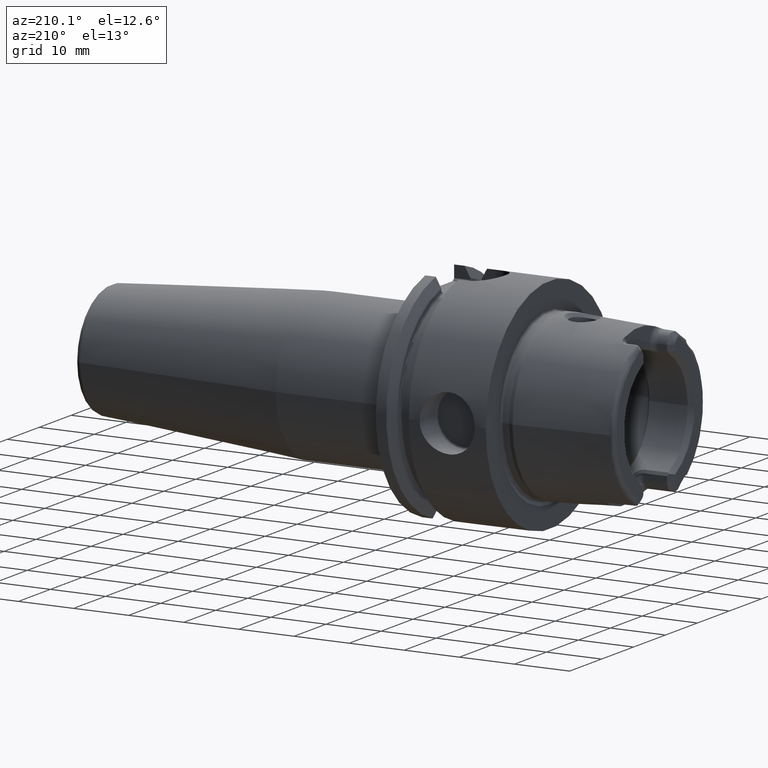
[diagram: clean part render]
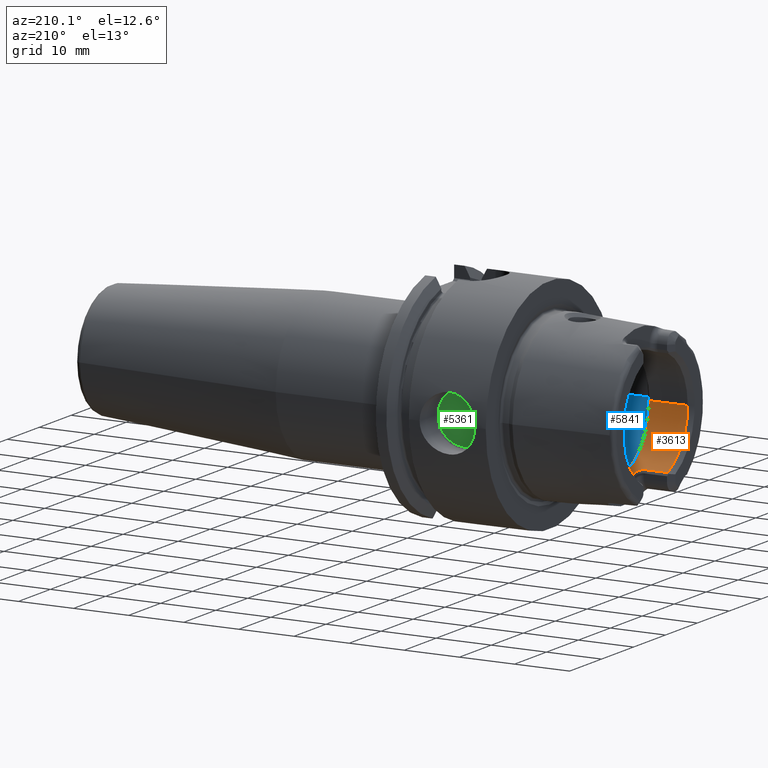
[diagram: same view with three faces highlighted in distinct colors, each labeled with its STEP entity id]
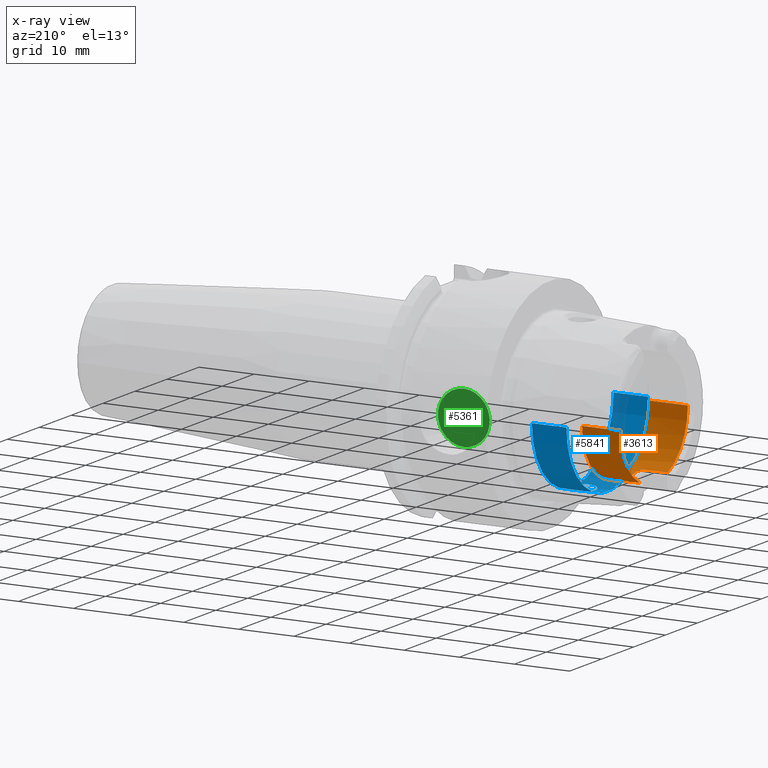
[diagram: x-ray of the same camera — body ghosted, the three highlighted faces saturated]
A machine part, auxiliary view with three faces highlighted in distinct colors.
The next image is the same camera in x-ray (body ghosted, the three faces saturated) — at least one of them is partly hidden behind the body in this view.
Their STEP definitions:

[orange] entity #3613 — the highlighted cylindrical surface (partial cylindrical patch) has radius 10.521 mm, axis along (1, 0, 0).
#162=CARTESIAN_POINT('',(-1.895E1,0.E0,0.E0));
#163=DIRECTION('',(-1.E0,0.E0,0.E0));
#164=DIRECTION('',(0.E0,1.E0,0.E0));
#165=AXIS2_PLACEMENT_3D('',#162,#163,#164);
#184=CARTESIAN_POINT('',(-1.895E1,0.E0,0.E0));
#185=DIRECTION('',(-1.E0,0.E0,0.E0));
#186=DIRECTION('',(0.E0,-4.118322130602E-1,-9.112596931095E-1));
#187=AXIS2_PLACEMENT_3D('',#184,#185,#186);
#449=DIRECTION('',(1.E0,0.E0,0.E0));
#450=VECTOR('',#449,4.2E0);
#451=CARTESIAN_POINT('',(-1.895E1,-4.332886713606E0,-9.587363231205E0));
#452=LINE('',#451,#450);
#453=CARTESIAN_POINT('',(-1.361905989232E1,-3.125E0,-1.004618415121E1));
#454=CARTESIAN_POINT('',(-1.361592975632E1,-3.211047903169E0,
-1.001941779959E1));
#455=CARTESIAN_POINT('',(-1.362830690364E1,-3.376674935645E0,
-9.965489777491E0));
#456=CARTESIAN_POINT('',(-1.369487701061E1,-3.608387354773E0,
-9.883797452962E0));
#457=CARTESIAN_POINT('',(-1.380248013601E1,-3.815484612338E0,
-9.805480189149E0));
#458=CARTESIAN_POINT('',(-1.394066255616E1,-3.989788124015E0,
-9.735653861397E0));
#459=CARTESIAN_POINT('',(-1.411012006945E1,-4.135710131103E0,
-9.674392936759E0));
#460=CARTESIAN_POINT('',(-1.430410390614E1,-4.245967146699E0,
-9.626339205832E0));
#461=CARTESIAN_POINT('',(-1.452166896898E1,-4.316666764177E0,
-9.594719443668E0));
#462=CARTESIAN_POINT('',(-1.467238435691E1,-4.332886713606E0,
-9.587363231205E0));
#463=CARTESIAN_POINT('',(-1.475E1,-4.332886713606E0,-9.587363231205E0));
#465=CARTESIAN_POINT('',(-1.361905989232E1,3.125E0,-1.004618415121E1));
#466=CARTESIAN_POINT('',(-1.361905989232E1,2.721042228969E0,-1.017184062092E1));
#467=CARTESIAN_POINT('',(-1.361905989235E1,1.897951985784E0,-1.037436441745E1));
#468=CARTESIAN_POINT('',(-1.361905989234E1,6.357304159773E-1,
-1.052736939476E1));
#469=CARTESIAN_POINT('',(-1.361905989234E1,-6.357304159773E-1,
-1.052736939476E1));
#470=CARTESIAN_POINT('',(-1.361905989235E1,-1.897951985784E0,
-1.037436441746E1));
#471=CARTESIAN_POINT('',(-1.361905989232E1,-2.721042228969E0,
-1.017184062091E1));
#472=CARTESIAN_POINT('',(-1.361905989232E1,-3.125E0,-1.004618415121E1));
#474=CARTESIAN_POINT('',(-1.475E1,4.332886713606E0,-9.587363231205E0));
#475=CARTESIAN_POINT('',(-1.467285006857E1,4.332886713606E0,-9.587363231205E0));
#476=CARTESIAN_POINT('',(-1.452307041867E1,4.316718593707E0,-9.594693336977E0));
#477=CARTESIAN_POINT('',(-1.430926406065E1,4.248069617223E0,-9.625405215616E0));
#478=CARTESIAN_POINT('',(-1.411435139104E1,4.138751657454E0,-9.673089130358E0));
#479=CARTESIAN_POINT('',(-1.394441708920E1,3.993617830691E0,-9.734075777499E0));
#480=CARTESIAN_POINT('',(-1.380572565004E1,3.820495104545E0,-9.803525976760E0));
#481=CARTESIAN_POINT('',(-1.369643644861E1,3.612675047199E0,-9.882244600219E0));
#482=CARTESIAN_POINT('',(-1.362856837010E1,3.378987943032E0,-9.964725252688E0));
#483=CARTESIAN_POINT('',(-1.361589935315E1,3.211883690699E0,-1.001915781670E1));
#484=CARTESIAN_POINT('',(-1.361905989232E1,3.125E0,-1.004618415121E1));
#486=DIRECTION('',(1.E0,0.E0,0.E0));
#487=VECTOR('',#486,4.2E0);
#488=CARTESIAN_POINT('',(-1.895E1,4.332886713606E0,-9.587363231205E0));
#489=LINE('',#488,#487);
#490=DIRECTION('',(-1.E0,0.E0,0.E0));
#491=VECTOR('',#490,6.964774086463E0);
#492=CARTESIAN_POINT('',(-1.198522591354E1,1.0521E1,0.E0));
#493=LINE('',#492,#491);
#494=CARTESIAN_POINT('',(-1.198522591354E1,0.E0,0.E0));
#495=DIRECTION('',(-1.E0,0.E0,0.E0));
#496=DIRECTION('',(0.E0,1.E0,0.E0));
#497=AXIS2_PLACEMENT_3D('',#494,#495,#496);
#499=DIRECTION('',(-1.E0,0.E0,0.E0));
#500=VECTOR('',#499,6.964774086463E0);
#501=CARTESIAN_POINT('',(-1.198522591354E1,-1.0521E1,0.E0));
#502=LINE('',#501,#500);
#2783=CARTESIAN_POINT('',(-1.475E1,-4.332886713606E0,-9.587363231205E0));
#2784=VERTEX_POINT('',#2783);
#2785=CARTESIAN_POINT('',(-1.361905989232E1,-3.125E0,-1.004618415121E1));
#2786=VERTEX_POINT('',#2785);
#2787=CARTESIAN_POINT('',(-1.475E1,4.332886713606E0,-9.587363231205E0));
#2788=VERTEX_POINT('',#2787);
#2789=CARTESIAN_POINT('',(-1.361905989232E1,3.125E0,-1.004618415121E1));
#2790=VERTEX_POINT('',#2789);
#3066=CARTESIAN_POINT('',(-1.198522591354E1,1.0521E1,0.E0));
#3067=VERTEX_POINT('',#3066);
#3068=CARTESIAN_POINT('',(-1.895E1,1.0521E1,0.E0));
#3069=VERTEX_POINT('',#3068);
#3078=CARTESIAN_POINT('',(-1.198522591354E1,-1.0521E1,0.E0));
#3079=VERTEX_POINT('',#3078);
#3080=CARTESIAN_POINT('',(-1.895E1,-1.0521E1,0.E0));
#3081=VERTEX_POINT('',#3080);
#3086=CARTESIAN_POINT('',(-1.895E1,-4.332886713606E0,-9.587363231205E0));
#3087=VERTEX_POINT('',#3086);
#3088=CARTESIAN_POINT('',(-1.895E1,4.332886713606E0,-9.587363231205E0));
#3089=VERTEX_POINT('',#3088);
#3589=CARTESIAN_POINT('',(-2.12925E1,0.E0,0.E0));
#3590=DIRECTION('',(1.E0,0.E0,0.E0));
#3591=DIRECTION('',(0.E0,-1.E0,0.E0));
#3592=AXIS2_PLACEMENT_3D('',#3589,#3590,#3591);
#3593=CYLINDRICAL_SURFACE('',#3592,1.0521E1);
#3595=ORIENTED_EDGE('',*,*,#3594,.T.);
#3597=ORIENTED_EDGE('',*,*,#3596,.F.);
#3599=ORIENTED_EDGE('',*,*,#3598,.F.);
#3601=ORIENTED_EDGE('',*,*,#3600,.F.);
#3602=ORIENTED_EDGE('',*,*,#3581,.F.);
#3603=ORIENTED_EDGE('',*,*,#3329,.F.);
#3605=ORIENTED_EDGE('',*,*,#3604,.F.);
#3607=ORIENTED_EDGE('',*,*,#3606,.T.);
#3609=ORIENTED_EDGE('',*,*,#3608,.T.);
#3610=ORIENTED_EDGE('',*,*,#3345,.F.);
#3611=EDGE_LOOP('',(#3595,#3597,#3599,#3601,#3602,#3603,#3605,#3607,#3609,
#3610));
#3612=FACE_OUTER_BOUND('',#3611,.F.);
#3613=ADVANCED_FACE('',(#3612),#3593,.F.);
#166=CIRCLE('',#165,1.0521E1);
#188=CIRCLE('',#187,1.0521E1);
#464=B_SPLINE_CURVE_WITH_KNOTS('',3,(#453,#454,#455,#456,#457,#458,#459,#460,
#461,#462,#463),.UNSPECIFIED.,.F.,.F.,(4,1,1,1,1,1,1,1,4),(0.E0,1.25E-1,2.5E-1,
3.75E-1,5.E-1,6.25E-1,7.5E-1,8.75E-1,1.E0),.UNSPECIFIED.);
#473=B_SPLINE_CURVE_WITH_KNOTS('',3,(#465,#466,#467,#468,#469,#470,#471,#472),
.UNSPECIFIED.,.F.,.F.,(4,1,1,1,1,4),(0.E0,2.E-1,4.E-1,6.E-1,8.E-1,1.E0),
.UNSPECIFIED.);
#485=B_SPLINE_CURVE_WITH_KNOTS('',3,(#474,#475,#476,#477,#478,#479,#480,#481,
#482,#483,#484),.UNSPECIFIED.,.F.,.F.,(4,1,1,1,1,1,1,1,4),(0.E0,1.25E-1,2.5E-1,
3.75E-1,5.E-1,6.25E-1,7.5E-1,8.75E-1,1.E0),.UNSPECIFIED.);
#498=CIRCLE('',#497,1.0521E1);
#3329=EDGE_CURVE('',#3069,#3089,#166,.T.);
#3345=EDGE_CURVE('',#3087,#3081,#188,.T.);
#3581=EDGE_CURVE('',#3089,#2788,#489,.T.);
#3594=EDGE_CURVE('',#3087,#2784,#452,.T.);
#3596=EDGE_CURVE('',#2786,#2784,#464,.T.);
#3598=EDGE_CURVE('',#2790,#2786,#473,.T.);
#3600=EDGE_CURVE('',#2788,#2790,#485,.T.);
#3604=EDGE_CURVE('',#3067,#3069,#493,.T.);
#3606=EDGE_CURVE('',#3067,#3079,#498,.T.);
#3608=EDGE_CURVE('',#3079,#3081,#502,.T.);

[blue] entity #5841 — the highlighted cylindrical surface (partial cylindrical patch) has radius 12.7825 mm, axis along (1, 0, 0).
#2170=CARTESIAN_POINT('',(-8.3E0,0.E0,-1.27825E1));
#2171=CARTESIAN_POINT('',(-8.3E0,1.427133188728E-1,-1.27825E1));
#2172=CARTESIAN_POINT('',(-8.274458641874E0,4.251001717398E-1,
-1.277785723202E1));
#2173=CARTESIAN_POINT('',(-8.150394164702E0,8.552839426964E-1,
-1.275610601200E1));
#2174=CARTESIAN_POINT('',(-7.951233537966E0,1.243083672227E0,
-1.272367412636E1));
#2175=CARTESIAN_POINT('',(-7.683823374207E0,1.586566955446E0,
-1.268498775870E1));
#2176=CARTESIAN_POINT('',(-7.359422530705E0,1.872091172279E0,
-1.264553412780E1));
#2177=CARTESIAN_POINT('',(-6.982163681121E0,2.095136224183E0,
-1.261009634872E1));
#2178=CARTESIAN_POINT('',(-6.566185328218E0,2.244067880612E0,
-1.258412352868E1));
#2179=CARTESIAN_POINT('',(-6.121061199087E0,2.311297649599E0,
-1.257179286987E1));
#2180=CARTESIAN_POINT('',(-5.676149668416E0,2.291600775933E0,
-1.257544742117E1));
#2181=CARTESIAN_POINT('',(-5.240803066666E0,2.186172578759E0,
-1.259443444977E1));
#2182=CARTESIAN_POINT('',(-4.838465041535E0,2.001728357804E0,
-1.262546966230E1));
#2183=CARTESIAN_POINT('',(-4.474710635944E0,1.740330157612E0,
-1.266460428970E1));
#2184=CARTESIAN_POINT('',(-4.274315380227E0,1.527743108869E0,
-1.269142200136E1));
#2185=CARTESIAN_POINT('',(-4.183373967266E0,1.410627469318E0,
-1.270442585845E1));
#2187=CARTESIAN_POINT('',(-4.183373967266E0,-1.410627469318E0,
-1.270442585845E1));
#2188=CARTESIAN_POINT('',(-4.274845955483E0,-1.528426391198E0,
-1.269134613356E1));
#2189=CARTESIAN_POINT('',(-4.476491226172E0,-1.742090205474E0,
-1.266437178853E1));
#2190=CARTESIAN_POINT('',(-4.842646105186E0,-2.004342770073E0,
-1.262505738972E1));
#2191=CARTESIAN_POINT('',(-5.247827202409E0,-2.188744995502E0,
-1.259398490958E1));
#2192=CARTESIAN_POINT('',(-5.685427416822E0,-2.293035858915E0,
-1.257518281515E1));
#2193=CARTESIAN_POINT('',(-6.133451184281E0,-2.310864424800E0,
-1.257187378090E1));
#2194=CARTESIAN_POINT('',(-6.582147233013E0,-2.240218352866E0,
-1.258482191328E1));
#2195=CARTESIAN_POINT('',(-6.998693660149E0,-2.087278659283E0,
-1.261141600658E1));
#2196=CARTESIAN_POINT('',(-7.372074513933E0,-1.862552087409E0,
-1.264694519423E1));
#2197=CARTESIAN_POINT('',(-7.691929393806E0,-1.577604060499E0,
-1.268609675560E1));
#2198=CARTESIAN_POINT('',(-7.955958524980E0,-1.235316293050E0,
-1.272441651818E1));
#2199=CARTESIAN_POINT('',(-8.152624433271E0,-8.492189308007E-1,
-1.275649065444E1));
#2200=CARTESIAN_POINT('',(-8.274974683889E0,-4.212871182657E-1,
-1.277795139359E1));
#2201=CARTESIAN_POINT('',(-8.3E0,-1.413211866780E-1,-1.27825E1));
#2202=CARTESIAN_POINT('',(-8.3E0,0.E0,-1.27825E1));
#2204=CARTESIAN_POINT('',(-4.183373967266E0,0.E0,0.E0));
#2205=DIRECTION('',(-1.E0,0.E0,0.E0));
#2206=DIRECTION('',(0.E0,-1.103561485873E-1,-9.938921070564E-1));
#2207=AXIS2_PLACEMENT_3D('',#2204,#2205,#2206);
#2209=DIRECTION('',(-1.E0,0.E0,0.E0));
#2210=VECTOR('',#2209,6.265234204822E0);
#2211=CARTESIAN_POINT('',(-4.183373967266E0,-1.27825E1,0.E0));
#2212=LINE('',#2211,#2210);
#2213=DIRECTION('',(-1.E0,0.E0,0.E0));
#2214=VECTOR('',#2213,6.265234204822E0);
#2215=CARTESIAN_POINT('',(-4.183373967266E0,1.27825E1,0.E0));
#2216=LINE('',#2215,#2214);
#2217=CARTESIAN_POINT('',(-4.183373967266E0,0.E0,0.E0));
#2218=DIRECTION('',(-1.E0,0.E0,0.E0));
#2219=DIRECTION('',(0.E0,1.E0,0.E0));
#2220=AXIS2_PLACEMENT_3D('',#2217,#2218,#2219);
#2222=CARTESIAN_POINT('',(-4.183373967266E0,1.410627469318E0,
-1.270442585845E1));
#2252=CARTESIAN_POINT('',(-4.183373967266E0,-1.410627469318E0,
-1.270442585845E1));
#2455=CARTESIAN_POINT('',(-1.044860817209E1,0.E0,0.E0));
#2456=DIRECTION('',(-1.E0,0.E0,0.E0));
#2457=DIRECTION('',(0.E0,1.E0,0.E0));
#2458=AXIS2_PLACEMENT_3D('',#2455,#2456,#2457);
#3042=CARTESIAN_POINT('',(-8.3E0,0.E0,-1.27825E1));
#3043=VERTEX_POINT('',#3042);
#3060=CARTESIAN_POINT('',(-4.183373967266E0,1.27825E1,0.E0));
#3061=VERTEX_POINT('',#3060);
#3062=CARTESIAN_POINT('',(-1.044860817209E1,1.27825E1,0.E0));
#3063=VERTEX_POINT('',#3062);
#3072=CARTESIAN_POINT('',(-4.183373967266E0,-1.27825E1,0.E0));
#3073=VERTEX_POINT('',#3072);
#3074=CARTESIAN_POINT('',(-1.044860817209E1,-1.27825E1,0.E0));
#3075=VERTEX_POINT('',#3074);
#3092=VERTEX_POINT('',#2222);
#3093=VERTEX_POINT('',#2252);
#5824=CARTESIAN_POINT('',(-2.12925E1,0.E0,0.E0));
#5825=DIRECTION('',(1.E0,0.E0,0.E0));
#5826=DIRECTION('',(0.E0,-1.E0,0.E0));
#5827=AXIS2_PLACEMENT_3D('',#5824,#5825,#5826);
#5828=CYLINDRICAL_SURFACE('',#5827,1.27825E1);
#5829=ORIENTED_EDGE('',*,*,#5778,.F.);
#5830=ORIENTED_EDGE('',*,*,#5570,.F.);
#5832=ORIENTED_EDGE('',*,*,#5831,.T.);
#5833=ORIENTED_EDGE('',*,*,#5817,.T.);
#5835=ORIENTED_EDGE('',*,*,#5834,.F.);
#5836=ORIENTED_EDGE('',*,*,#5813,.F.);
#5838=ORIENTED_EDGE('',*,*,#5837,.T.);
#5839=EDGE_LOOP('',(#5829,#5830,#5832,#5833,#5835,#5836,#5838));
#5840=FACE_OUTER_BOUND('',#5839,.F.);
#5841=ADVANCED_FACE('',(#5840),#5828,.F.);
#2186=B_SPLINE_CURVE_WITH_KNOTS('',3,(#2170,#2171,#2172,#2173,#2174,#2175,#2176,
#2177,#2178,#2179,#2180,#2181,#2182,#2183,#2184,#2185),.UNSPECIFIED.,.F.,.F.,(4,
1,1,1,1,1,1,1,1,1,1,1,1,4),(0.E0,7.692307692308E-2,1.538461538462E-1,
2.307692307692E-1,3.076923076923E-1,3.846153846154E-1,4.615384615385E-1,
5.384615384615E-1,6.153846153846E-1,6.923076923077E-1,7.692307692308E-1,
8.461538461538E-1,9.230769230769E-1,1.E0),.UNSPECIFIED.);
#2203=B_SPLINE_CURVE_WITH_KNOTS('',3,(#2187,#2188,#2189,#2190,#2191,#2192,#2193,
#2194,#2195,#2196,#2197,#2198,#2199,#2200,#2201,#2202),.UNSPECIFIED.,.F.,.F.,(4,
1,1,1,1,1,1,1,1,1,1,1,1,4),(0.E0,7.692307692308E-2,1.538461538462E-1,
2.307692307692E-1,3.076923076923E-1,3.846153846154E-1,4.615384615385E-1,
5.384615384615E-1,6.153846153846E-1,6.923076923077E-1,7.692307692308E-1,
8.461538461538E-1,9.230769230769E-1,1.E0),.UNSPECIFIED.);
#2208=CIRCLE('',#2207,1.27825E1);
#2221=CIRCLE('',#2220,1.27825E1);
#2459=CIRCLE('',#2458,1.27825E1);
#5570=EDGE_CURVE('',#3093,#3043,#2203,.T.);
#5778=EDGE_CURVE('',#3043,#3092,#2186,.T.);
#5813=EDGE_CURVE('',#3061,#3063,#2216,.T.);
#5817=EDGE_CURVE('',#3073,#3075,#2212,.T.);
#5831=EDGE_CURVE('',#3093,#3073,#2208,.T.);
#5834=EDGE_CURVE('',#3063,#3075,#2459,.T.);
#5837=EDGE_CURVE('',#3061,#3092,#2221,.T.);

[green] entity #5361 — the highlighted planar face has unit normal (0, 1, 0).
#1978=CARTESIAN_POINT('',(7.E0,1.476491673104E1,0.E0));
#1979=DIRECTION('',(0.E0,-1.E0,0.E0));
#1980=DIRECTION('',(0.E0,0.E0,1.E0));
#1981=AXIS2_PLACEMENT_3D('',#1978,#1979,#1980);
#1983=CARTESIAN_POINT('',(7.E0,1.476491673104E1,0.E0));
#1984=DIRECTION('',(0.E0,1.E0,0.E0));
#1985=DIRECTION('',(0.E0,0.E0,1.E0));
#1986=AXIS2_PLACEMENT_3D('',#1983,#1984,#1985);
#3139=CARTESIAN_POINT('',(7.E0,1.476491673104E1,4.7E0));
#3141=VERTEX_POINT('',#3139);
#3143=CARTESIAN_POINT('',(7.E0,1.476491673104E1,-4.7E0));
#3145=VERTEX_POINT('',#3143);
#5352=CARTESIAN_POINT('',(7.E0,1.476491673104E1,0.E0));
#5353=DIRECTION('',(0.E0,1.E0,0.E0));
#5354=DIRECTION('',(0.E0,0.E0,-1.E0));
#5355=AXIS2_PLACEMENT_3D('',#5352,#5353,#5354);
#5356=PLANE('',#5355);
#5357=ORIENTED_EDGE('',*,*,#5334,.T.);
#5358=ORIENTED_EDGE('',*,*,#5345,.F.);
#5359=EDGE_LOOP('',(#5357,#5358));
#5360=FACE_OUTER_BOUND('',#5359,.F.);
#5361=ADVANCED_FACE('',(#5360),#5356,.T.);
#1982=CIRCLE('',#1981,4.7E0);
#1987=CIRCLE('',#1986,4.7E0);
#5334=EDGE_CURVE('',#3141,#3145,#1982,.T.);
#5345=EDGE_CURVE('',#3141,#3145,#1987,.T.);